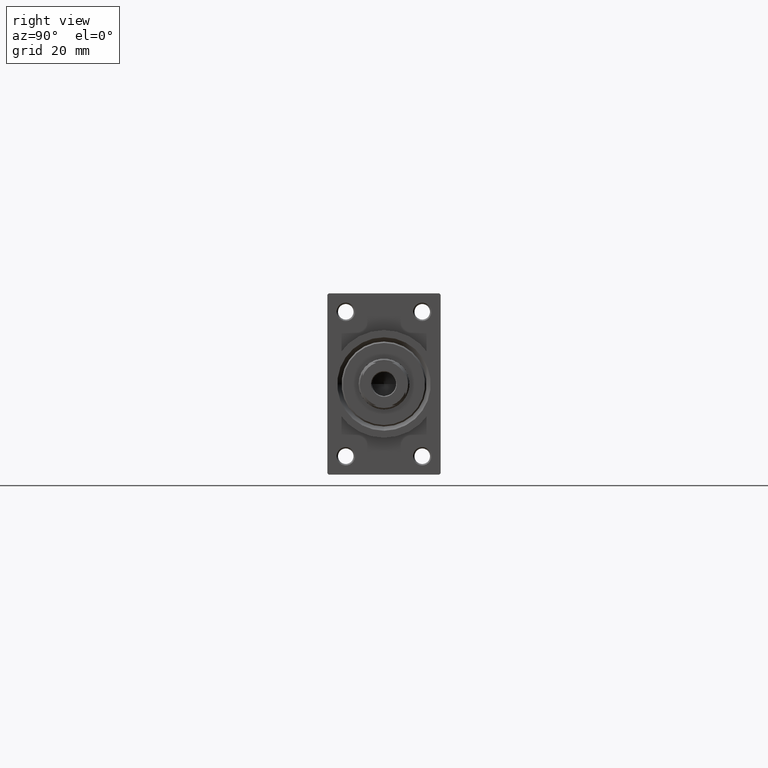
[diagram: clean part render]
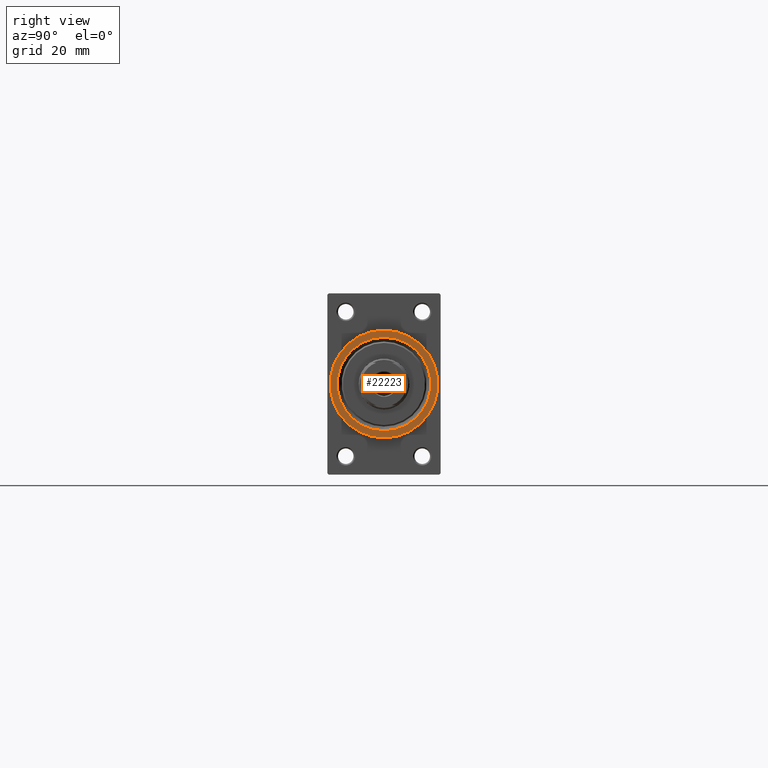
[diagram: same view with one face highlighted and labeled with its STEP entity id]
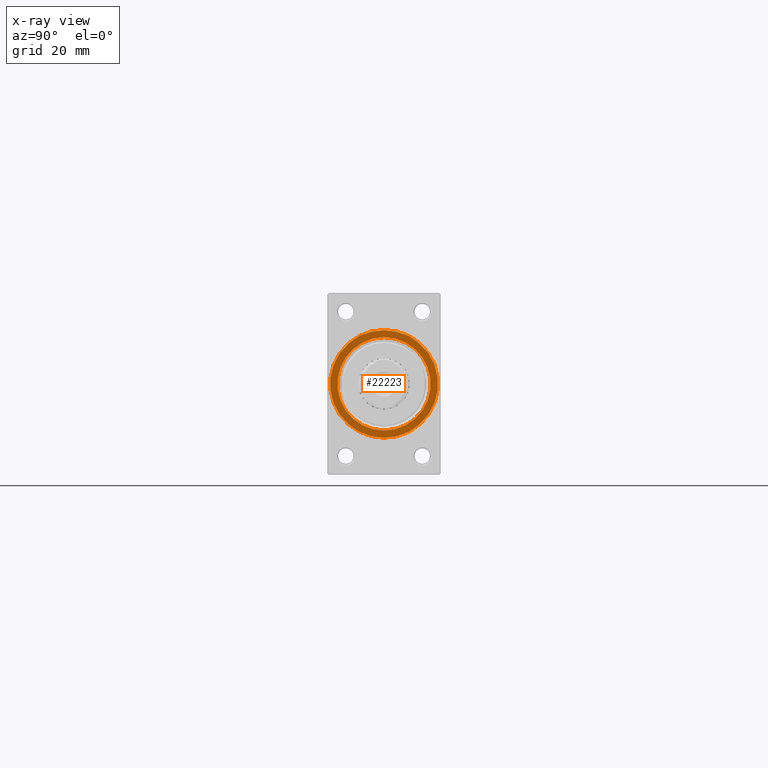
[diagram: x-ray of the same camera — body ghosted, the highlighted face saturated]
A machine part, right view. The second image highlights one B-rep face of the part: STEP entity #22223.
The next image is the same camera in x-ray: the body ghosted, the highlighted face saturated — about 0% of this face is hidden behind the body in this view.
In plain terms, the highlighted planar face has unit normal (1, 0, 0).
Its self-contained STEP definition (entity closure, byte-faithful):
#848 = CARTESIAN_POINT ( 'NONE',  ( 224.0000000000000000, 0.000000000000000000, 0.000000000000000000 ) ) ;
#1083 = DIRECTION ( 'NONE',  ( 1.000000000000000000, 0.000000000000000000, 0.000000000000000000 ) ) ;
#3636 = CARTESIAN_POINT ( 'NONE',  ( 224.0000000000000000, 2.326828918379970970E-15, -19.00000000000000000 ) ) ;
#6113 = EDGE_LOOP ( 'NONE', ( #10707, #36238 ) ) ;
#6371 = EDGE_CURVE ( 'NONE', #12891, #35300, #42212, .T. ) ;
#6538 = PLANE ( 'NONE',  #15091 ) ;
#9560 = CARTESIAN_POINT ( 'NONE',  ( 224.0000000000000000, 0.000000000000000000, 0.000000000000000000 ) ) ;
#10106 = FACE_OUTER_BOUND ( 'NONE', #12254, .T. ) ;
#10332 = DIRECTION ( 'NONE',  ( 0.000000000000000000, 0.000000000000000000, -1.000000000000000000 ) ) ;
#10707 = ORIENTED_EDGE ( 'NONE', *, *, #44118, .T. ) ;
#10859 = CARTESIAN_POINT ( 'NONE',  ( 224.0000000000000000, 0.000000000000000000, 0.000000000000000000 ) ) ;
#11577 = DIRECTION ( 'NONE',  ( 0.000000000000000000, 0.000000000000000000, -1.000000000000000000 ) ) ;
#12136 = AXIS2_PLACEMENT_3D ( 'NONE', #9560, #23829, #45761 ) ;
#12254 = EDGE_LOOP ( 'NONE', ( #40268, #34474 ) ) ;
#12891 = VERTEX_POINT ( 'NONE', #3636 ) ;
#14149 = DIRECTION ( 'NONE',  ( 1.000000000000000000, 0.000000000000000000, 0.000000000000000000 ) ) ;
#15091 = AXIS2_PLACEMENT_3D ( 'NONE', #46779, #14149, #10332 ) ;
#16723 = CIRCLE ( 'NONE', #12136, 16.49999999999995737 ) ;
#20262 = VERTEX_POINT ( 'NONE', #36066 ) ;
#21923 = CIRCLE ( 'NONE', #28002, 19.00000000000000000 ) ;
#22223 = ADVANCED_FACE ( 'NONE', ( #28191, #10106 ), #6538, .T. ) ;
#23829 = DIRECTION ( 'NONE',  ( -1.000000000000000000, -0.000000000000000000, -0.000000000000000000 ) ) ;
#25824 = DIRECTION ( 'NONE',  ( 0.000000000000000000, 0.000000000000000000, -1.000000000000000000 ) ) ;
#28002 = AXIS2_PLACEMENT_3D ( 'NONE', #10859, #32998, #11577 ) ;
#28191 = FACE_BOUND ( 'NONE', #6113, .T. ) ;
#28459 = CARTESIAN_POINT ( 'NONE',  ( 224.0000000000000000, 0.000000000000000000, -16.49999999999995737 ) ) ;
#30308 = VERTEX_POINT ( 'NONE', #28459 ) ;
#32024 = DIRECTION ( 'NONE',  ( -1.000000000000000000, -0.000000000000000000, -0.000000000000000000 ) ) ;
#32998 = DIRECTION ( 'NONE',  ( 1.000000000000000000, 0.000000000000000000, 0.000000000000000000 ) ) ;
#33063 = CARTESIAN_POINT ( 'NONE',  ( 224.0000000000000000, 0.000000000000000000, 19.00000000000000000 ) ) ;
#34474 = ORIENTED_EDGE ( 'NONE', *, *, #6371, .T. ) ;
#35300 = VERTEX_POINT ( 'NONE', #33063 ) ;
#36066 = CARTESIAN_POINT ( 'NONE',  ( 224.0000000000000000, 2.020667218593127578E-15, 16.49999999999995737 ) ) ;
#36238 = ORIENTED_EDGE ( 'NONE', *, *, #47135, .T. ) ;
#38843 = AXIS2_PLACEMENT_3D ( 'NONE', #43217, #32024, #46563 ) ;
#40268 = ORIENTED_EDGE ( 'NONE', *, *, #41199, .T. ) ;
#40709 = AXIS2_PLACEMENT_3D ( 'NONE', #848, #1083, #25824 ) ;
#41199 = EDGE_CURVE ( 'NONE', #35300, #12891, #21923, .T. ) ;
#42212 = CIRCLE ( 'NONE', #40709, 19.00000000000000000 ) ;
#43217 = CARTESIAN_POINT ( 'NONE',  ( 224.0000000000000000, 0.000000000000000000, 0.000000000000000000 ) ) ;
#44118 = EDGE_CURVE ( 'NONE', #30308, #20262, #16723, .T. ) ;
#45761 = DIRECTION ( 'NONE',  ( 0.000000000000000000, 0.000000000000000000, -1.000000000000000000 ) ) ;
#46474 = CIRCLE ( 'NONE', #38843, 16.49999999999995737 ) ;
#46563 = DIRECTION ( 'NONE',  ( 0.000000000000000000, 0.000000000000000000, -1.000000000000000000 ) ) ;
#46779 = CARTESIAN_POINT ( 'NONE',  ( 224.0000000000000000, 0.000000000000000000, 0.000000000000000000 ) ) ;
#47135 = EDGE_CURVE ( 'NONE', #20262, #30308, #46474, .T. ) ;